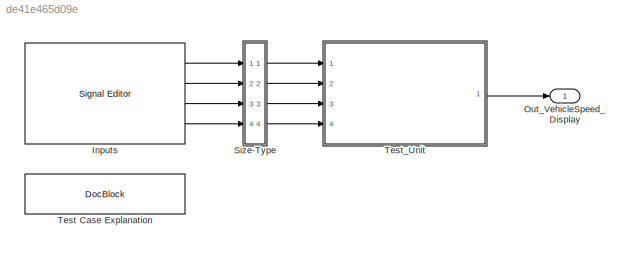
MODEL slx_de41e465d09e
KIND model
CONFIG AbsTol = auto
CONFIG EnableMultiTasking = off
CONFIG FixedStep = 0.01
CONFIG MaxStep = auto
CONFIG MinStep = auto
CONFIG PostLoadFcn = Sldv.HarnessUtils.openMultiSimulationDesignStudy;
CONFIG RelTol = 1e-3
CONFIG SampleTimeConstraint = Unconstrained
CONFIG SolverName = FixedStepDiscrete
CONFIG StartTime = 0
CONFIG StopTime = 0.040000000000000001
BLOCK [Reference] Inputs  REF=SignalEditorBlockLib/Signal Editor
  Ports = [0, 4]
  SourceBlock = SignalEditorBlockLib/Signal Editor
  SourceProductBaseCode = SL
  SourceType = SignalEditor
  Tag = SignalEditorBlock
  UserDataPersistent = on
BLOCK [Outport] Out_VehicleSpeed_Display
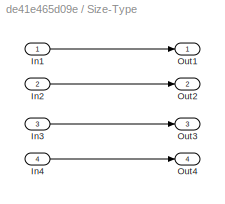
BLOCK [SubSystem] Size-Type
  NameLocation = top
  Ports = [4, 4]
  RequestExecContextInheritance = off
BLOCK [Inport] Size-Type/In1
BLOCK [Inport] Size-Type/In2
  Port = 2
BLOCK [Inport] Size-Type/In3
  Port = 3
BLOCK [Inport] Size-Type/In4
  Port = 4
BLOCK [Outport] Size-Type/Out1
BLOCK [Outport] Size-Type/Out2
  Port = 2
BLOCK [Outport] Size-Type/Out3
  Port = 3
BLOCK [Outport] Size-Type/Out4
  Port = 4
BLOCK [Reference] Test Case Explanation  REF=simulink/Model-Wide
Utilities/DocBlock
  Ports = []
  SourceBlock = simulink/Model-Wide\nUtilities/DocBlock
  SourceProductBaseCode = SL
  SourceType = DocBlock
  UserDataPersistent = on
BLOCK [ModelReference] Test_Unit
  ModelNameDialog = Vehicle_Speedometer_Module
  ModelReferenceVersion = 1.31
  Ports = [4, 1]
LINE Inputs:1 -> Size-Type:1
LINE Inputs:2 -> Size-Type:2
LINE Inputs:3 -> Size-Type:3
LINE Inputs:4 -> Size-Type:4
LINE Size-Type/In1:1 -> Size-Type/Out1:1
LINE Size-Type/In2:1 -> Size-Type/Out2:1
LINE Size-Type/In3:1 -> Size-Type/Out3:1
LINE Size-Type/In4:1 -> Size-Type/Out4:1
LINE Size-Type:1 -> Test_Unit:1
LINE Size-Type:2 -> Test_Unit:2
LINE Size-Type:3 -> Test_Unit:3
LINE Size-Type:4 -> Test_Unit:4
LINE Test_Unit:1 -> Out_VehicleSpeed_Display:1
